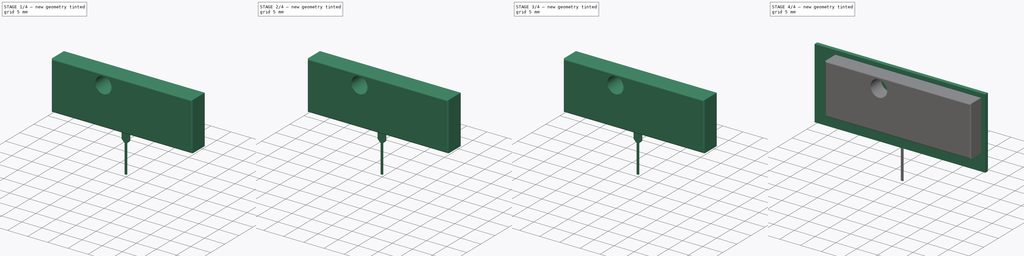
[diagram: build sequence overview — one tinted view per stage of 4, left to right]
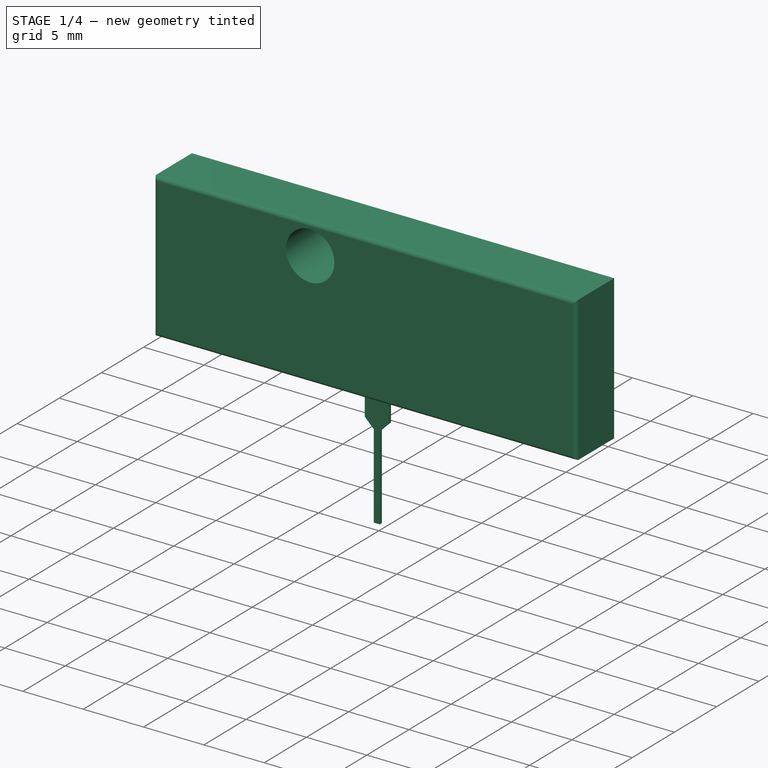
[diagram: stage 1 of 4 — iso view after this stage's code; geometry added in this stage tinted green]
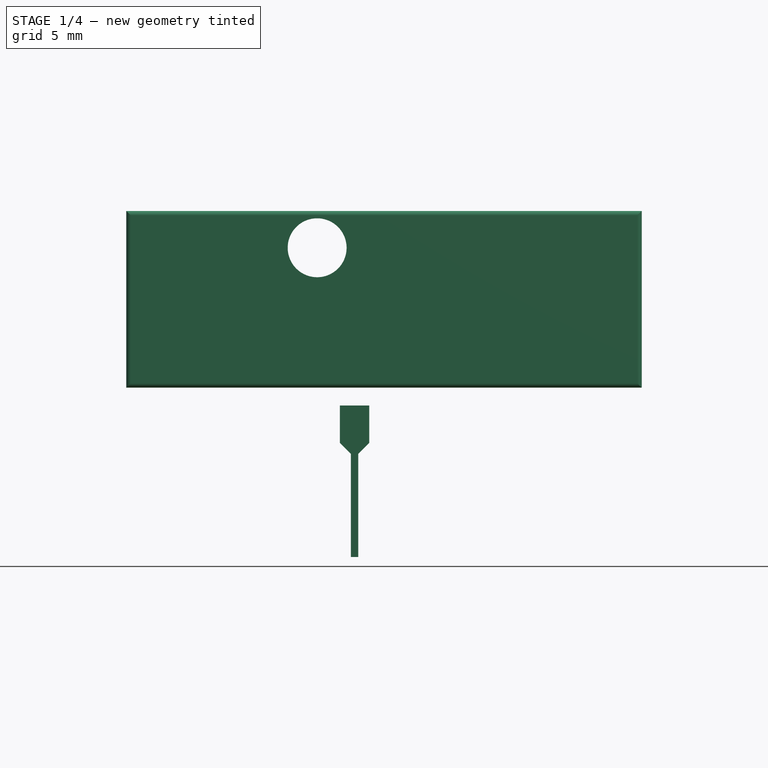
[diagram: stage 1 of 4 — front view after this stage's code; geometry added in this stage tinted green]
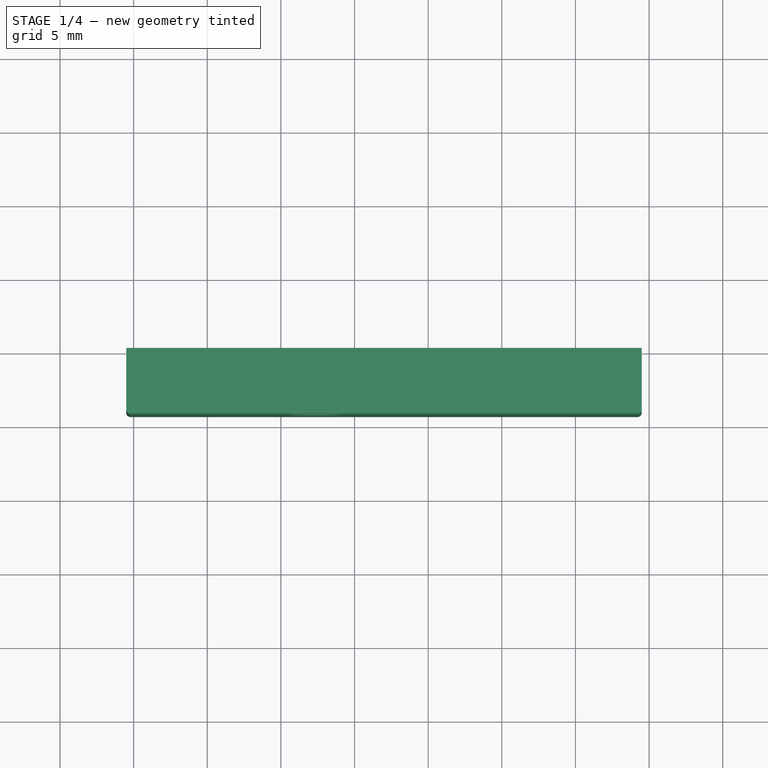
[diagram: stage 1 of 4 — top view after this stage's code; geometry added in this stage tinted green]
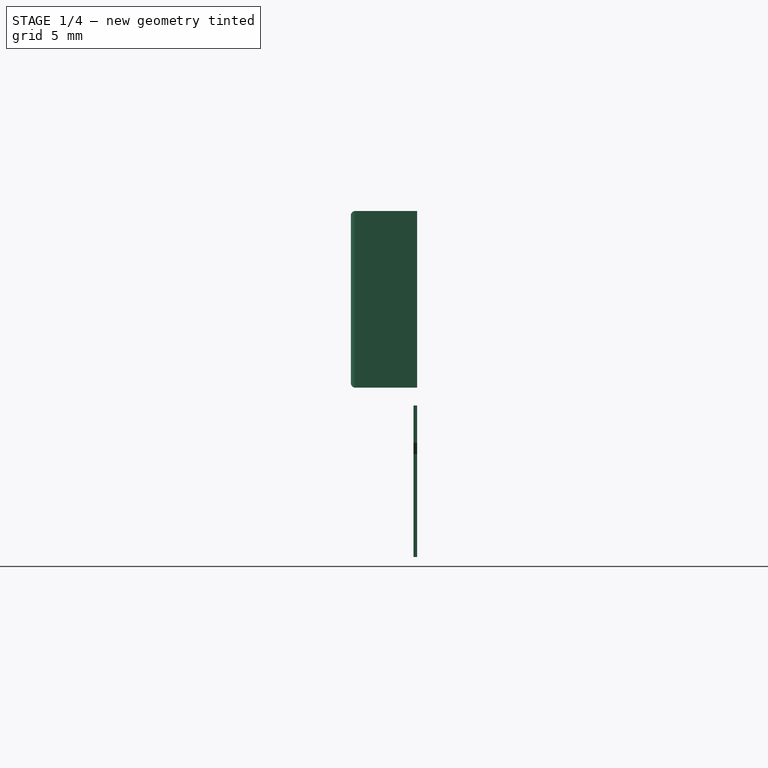
[diagram: stage 1 of 4 — right view after this stage's code; geometry added in this stage tinted green]
FCSTD DOCUMENT  (FreeCAD 0.21R33771 (Git))
Label: AUREL_RX-4MHCS-4B
License: All rights reserved
LicenseURL: http://en.wikipedia.org/wiki/All_rights_reserved
objects: Sketcher::SketchObject×13, PartDesign::Pad×13, PartDesign::Body×13, PartDesign::Fillet×1
note: 54 computed .brp shape members not serialized (recipe doc carries the construction recipe); baked Part::Feature solids carry a one-line shape summary decoded from their .brp

FEATURE [PartDesign::Body] Body009  label="Pin13"
  Group = -> [Sketch009,Pad009]
  Origin = -> Origin009
  Placement = pos=(12.7,0.3,0) rot=(0,0,1;0rad)
  Tip = -> Pad009
FEATURE [Sketcher::SketchObject] Sketch010
  FullyConstrained = true
  MapMode = 5
  Placement = pos=(0,0,0) rot=(1,0,0;1.5708rad)
  Support = -> [XZ_Plane010]
  sketch-geometry (8):
    g0: LineSegment StartX=-1 StartY=3.29 StartZ=0 EndX=1 EndY=3.29 EndZ=0
    g1: LineSegment StartX=1 StartY=3.29 StartZ=0 EndX=1 EndY=0.75 EndZ=0
    g2: LineSegment StartX=1 StartY=0.75 StartZ=0 EndX=0.25 EndY=0 EndZ=0
    g3: LineSegment StartX=-1 StartY=3.29 StartZ=0 EndX=-1 EndY=0.75 EndZ=0
    g4: LineSegment StartX=-1 StartY=0.75 StartZ=0 EndX=-0.25 EndY=0 EndZ=0
    g5: LineSegment StartX=-0.25 StartY=0 StartZ=0 EndX=-0.25 EndY=-7 EndZ=0
    g6: LineSegment StartX=-0.25 StartY=-7 StartZ=0 EndX=0.25 EndY=-7 EndZ=0
    g7: LineSegment StartX=0.25 StartY=0 StartZ=0 EndX=0.25 EndY=-7 EndZ=0
  constraints (23):
    c: Coincident(g1,g0)
    c: Vertical(g1)
    c: Coincident(g2,g1)
    c: PointOnObject(g2,g-1)
    c: Coincident(g3,g0)
    c: Vertical(g3)
    c: Coincident(g4,g3)
    c: PointOnObject(g4,g-1)
    c: Equal(g3,g1)
    c: DistanceX(g0,g0) = 2
    c: Symmetric(g0,g0,g-2)
    c: Equal(g2,g4)
    c: Coincident(g5,g4)
    c: Vertical(g5)
    c: Coincident(g6,g5)
    c: Horizontal(g6)
    c: Coincident(g7,g2)
    c: Coincident(g7,g6)
    c: Vertical(g7)
    c: Angle(g4) = -0.785398
    c: DistanceX(g6,g6) = 0.5
    c: DistanceY(g7,g7) = 7
    c: DistanceY(g1,g1) = 2.54
FEATURE [PartDesign::Pad] Pad010
  Direction = (0,-1,2e-16)
  Length = 0.25
  Length2 = 10
  Placement = pos=(0,0,0) rot=(1,0,0;1.5708rad)
  Profile = -> Sketch010
  ReferenceAxis = -> Sketch010 [N_Axis]
  Type = 0
FEATURE [PartDesign::Body] Body010  label="Pin14"
  Group = -> [Sketch010,Pad010]
  Origin = -> Origin010
  Placement = pos=(15.24,0.3,0) rot=(0,0,1;0rad)
  Tip = -> Pad010
FEATURE [Sketcher::SketchObject] Sketch011
  FullyConstrained = true
  MapMode = 5
  Placement = pos=(0,0,0) rot=(1,0,0;1.5708rad)
  Support = -> [XZ_Plane011]
  sketch-geometry (8):
    g0: LineSegment StartX=-1 StartY=3.29 StartZ=0 EndX=1 EndY=3.29 EndZ=0
    g1: LineSegment StartX=1 StartY=3.29 StartZ=0 EndX=1 EndY=0.75 EndZ=0
    g2: LineSegment StartX=1 StartY=0.75 StartZ=0 EndX=0.25 EndY=0 EndZ=0
    g3: LineSegment StartX=-1 StartY=3.29 StartZ=0 EndX=-1 EndY=0.75 EndZ=0
    g4: LineSegment StartX=-1 StartY=0.75 StartZ=0 EndX=-0.25 EndY=0 EndZ=0
    g5: LineSegment StartX=-0.25 StartY=0 StartZ=0 EndX=-0.25 EndY=-7 EndZ=0
    g6: LineSegment StartX=-0.25 StartY=-7 StartZ=0 EndX=0.25 EndY=-7 EndZ=0
    g7: LineSegment StartX=0.25 StartY=0 StartZ=0 EndX=0.25 EndY=-7 EndZ=0
  constraints (23):
    c: Coincident(g1,g0)
    c: Vertical(g1)
    c: Coincident(g2,g1)
    c: PointOnObject(g2,g-1)
    c: Coincident(g3,g0)
    c: Vertical(g3)
    c: Coincident(g4,g3)
    c: PointOnObject(g4,g-1)
    c: Equal(g3,g1)
    c: DistanceX(g0,g0) = 2
    c: Symmetric(g0,g0,g-2)
    c: Equal(g2,g4)
    c: Coincident(g5,g4)
    c: Vertical(g5)
    c: Coincident(g6,g5)
    c: Horizontal(g6)
    c: Coincident(g7,g2)
    c: Coincident(g7,g6)
    c: Vertical(g7)
    c: Angle(g4) = -0.785398
    c: DistanceX(g6,g6) = 0.5
    c: DistanceY(g7,g7) = 7
    c: DistanceY(g1,g1) = 2.54
FEATURE [PartDesign::Pad] Pad011
  Direction = (0,-1,2e-16)
  Length = 0.25
  Length2 = 10
  Placement = pos=(0,0,0) rot=(1,0,0;1.5708rad)
  Profile = -> Sketch011
  ReferenceAxis = -> Sketch011 [N_Axis]
  Type = 0
FEATURE [PartDesign::Body] Body011  label="Pin15"
  Group = -> [Sketch011,Pad011]
  Origin = -> Origin011
  Placement = pos=(17.76,0.3,0) rot=(0,0,1;0rad)
  Tip = -> Pad011
FEATURE [Sketcher::SketchObject] Sketch012
  FullyConstrained = true
  MapMode = 5
  Placement = pos=(0,0,0) rot=(1,0,0;1.5708rad)
  Support = -> [XZ_Plane012]
  sketch-geometry (5):
    g0: LineSegment StartX=-15.5 StartY=16.5 StartZ=0 EndX=19.5 EndY=16.5 EndZ=0
    g1: LineSegment StartX=19.5 StartY=16.5 StartZ=0 EndX=19.5 EndY=4.5 EndZ=0
    g2: LineSegment StartX=19.5 StartY=4.5 StartZ=0 EndX=-15.5 EndY=4.5 EndZ=0
    g3: LineSegment StartX=-15.5 StartY=4.5 StartZ=0 EndX=-15.5 EndY=16.5 EndZ=0
    g4: Circle CenterX=-2.54 CenterY=14 CenterZ=0 NormalX=0 NormalY=0 NormalZ=1 AngleXU=0 Radius=2
  constraints (15):
    c: Coincident(g0,g1)
    c: Coincident(g1,g2)
    c: Coincident(g2,g3)
    c: Coincident(g3,g0)
    c: Horizontal(g0)
    c: Horizontal(g2)
    c: Vertical(g1)
    c: Vertical(g3)
    c: DistanceY(g1,g1) = 12
    c: DistanceX(g0,g0) = 35
    c: DistanceY(g1) = 4.5
    c: DistanceX(g1) = 19.5
    c: Radius(g4) = 2
    c: DistanceY(g4) = 14
    c: DistanceX(g4) = -2.54
FEATURE [PartDesign::Pad] Pad012
  Direction = (0,-1,2e-16)
  Length = 4.5
  Length2 = 10
  Placement = pos=(0,0,0) rot=(1,0,0;1.5708rad)
  Profile = -> Sketch012
  ReferenceAxis = -> Sketch012 [N_Axis]
  Type = 0
FEATURE [PartDesign::Fillet] Fillet
  Base = -> Pad012 [Edge4,Edge12,Edge10,Edge7]
  BaseFeature = -> Pad012
  Placement = pos=(0,0,0) rot=(1,0,0;1.5708rad)
  Radius = 0.3
  SupportTransform = false
  UseAllEdges = false
FEATURE [PartDesign::Body] Body012  label="Shield"
  Group = -> [Sketch012,Pad012,Fillet]
  Origin = -> Origin012
  Placement = pos=(0,-1,0) rot=(0,0,1;0rad)
  Tip = -> Fillet
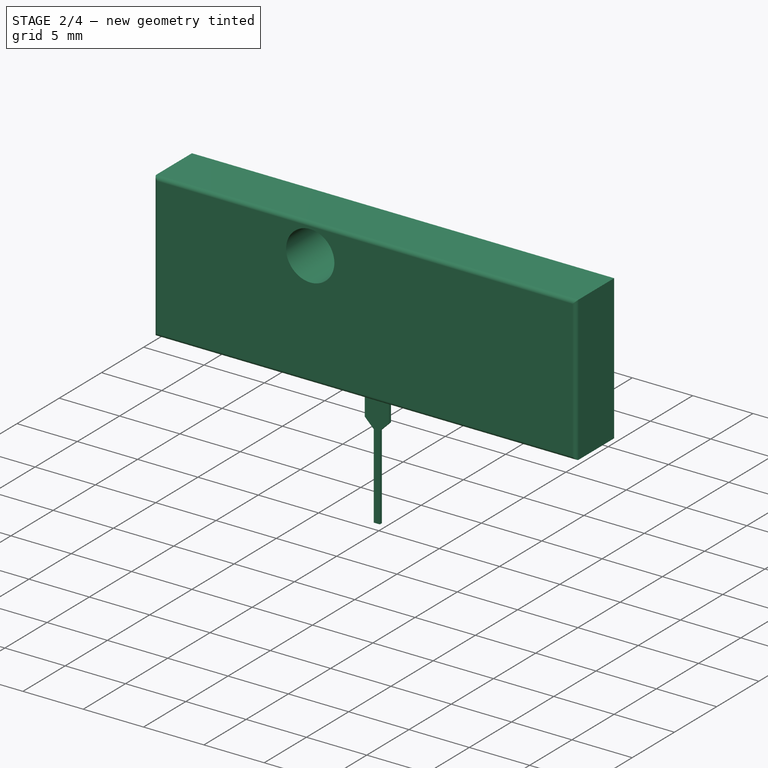
[diagram: stage 2 of 4 — iso view after this stage's code; geometry added in this stage tinted green]
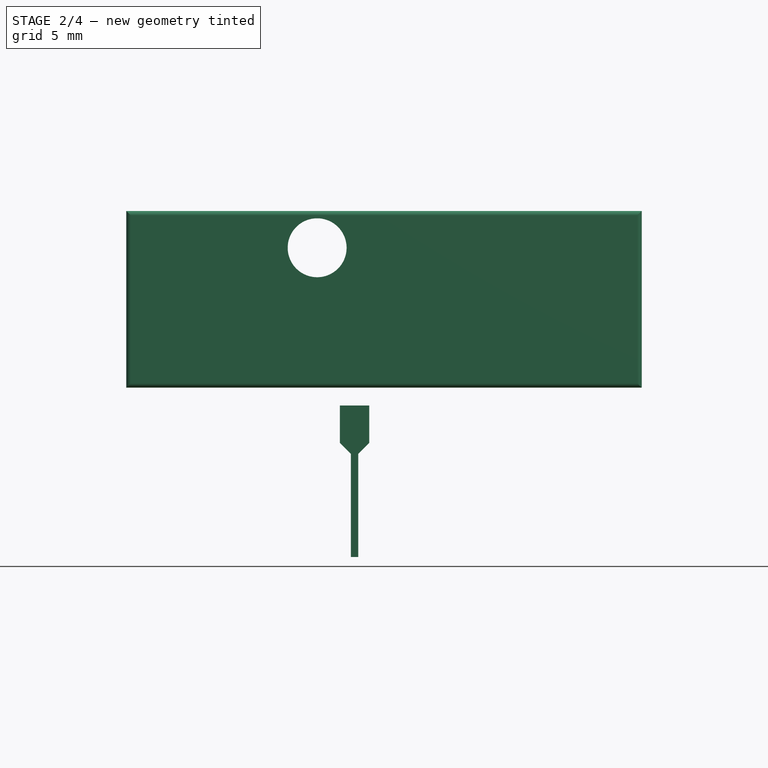
[diagram: stage 2 of 4 — front view after this stage's code; geometry added in this stage tinted green]
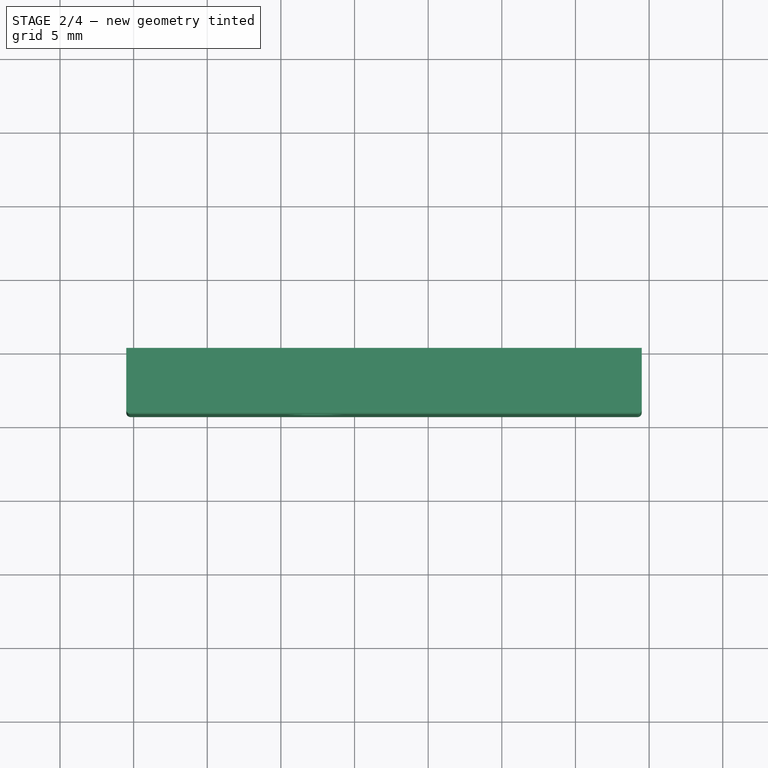
[diagram: stage 2 of 4 — top view after this stage's code; geometry added in this stage tinted green]
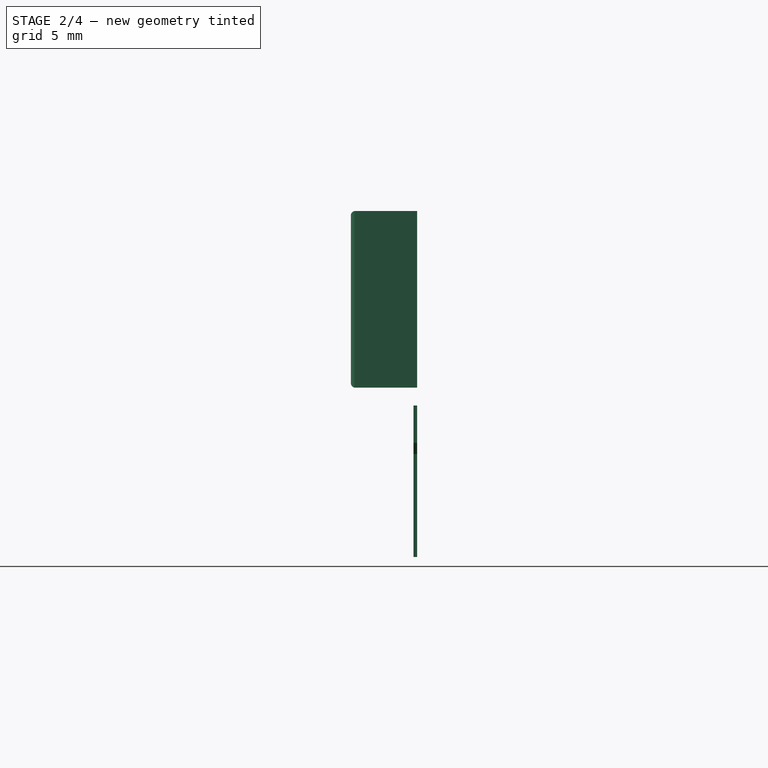
[diagram: stage 2 of 4 — right view after this stage's code; geometry added in this stage tinted green]
FEATURE [PartDesign::Body] Body006  label="Pin10"
  Group = -> [Sketch006,Pad006]
  Origin = -> Origin006
  Placement = pos=(5.08,0.3,0) rot=(0,0,1;0rad)
  Tip = -> Pad006
FEATURE [Sketcher::SketchObject] Sketch007
  FullyConstrained = true
  MapMode = 5
  Placement = pos=(0,0,0) rot=(1,0,0;1.5708rad)
  Support = -> [XZ_Plane007]
  sketch-geometry (8):
    g0: LineSegment StartX=-1 StartY=3.29 StartZ=0 EndX=1 EndY=3.29 EndZ=0
    g1: LineSegment StartX=1 StartY=3.29 StartZ=0 EndX=1 EndY=0.75 EndZ=0
    g2: LineSegment StartX=1 StartY=0.75 StartZ=0 EndX=0.25 EndY=0 EndZ=0
    g3: LineSegment StartX=-1 StartY=3.29 StartZ=0 EndX=-1 EndY=0.75 EndZ=0
    g4: LineSegment StartX=-1 StartY=0.75 StartZ=0 EndX=-0.25 EndY=0 EndZ=0
    g5: LineSegment StartX=-0.25 StartY=0 StartZ=0 EndX=-0.25 EndY=-7 EndZ=0
    g6: LineSegment StartX=-0.25 StartY=-7 StartZ=0 EndX=0.25 EndY=-7 EndZ=0
    g7: LineSegment StartX=0.25 StartY=0 StartZ=0 EndX=0.25 EndY=-7 EndZ=0
  constraints (23):
    c: Coincident(g1,g0)
    c: Vertical(g1)
    c: Coincident(g2,g1)
    c: PointOnObject(g2,g-1)
    c: Coincident(g3,g0)
    c: Vertical(g3)
    c: Coincident(g4,g3)
    c: PointOnObject(g4,g-1)
    c: Equal(g3,g1)
    c: DistanceX(g0,g0) = 2
    c: Symmetric(g0,g0,g-2)
    c: Equal(g2,g4)
    c: Coincident(g5,g4)
    c: Vertical(g5)
    c: Coincident(g6,g5)
    c: Horizontal(g6)
    c: Coincident(g7,g2)
    c: Coincident(g7,g6)
    c: Vertical(g7)
    c: Angle(g4) = -0.785398
    c: DistanceX(g6,g6) = 0.5
    c: DistanceY(g7,g7) = 7
    c: DistanceY(g1,g1) = 2.54
FEATURE [PartDesign::Pad] Pad007
  Direction = (0,-1,2e-16)
  Length = 0.25
  Length2 = 10
  Placement = pos=(0,0,0) rot=(1,0,0;1.5708rad)
  Profile = -> Sketch007
  ReferenceAxis = -> Sketch007 [N_Axis]
  Type = 0
FEATURE [PartDesign::Body] Body007  label="Pin11"
  Group = -> [Sketch007,Pad007]
  Origin = -> Origin007
  Placement = pos=(7.62,0.3,0) rot=(0,0,1;0rad)
  Tip = -> Pad007
FEATURE [Sketcher::SketchObject] Sketch008
  FullyConstrained = true
  MapMode = 5
  Placement = pos=(0,0,0) rot=(1,0,0;1.5708rad)
  Support = -> [XZ_Plane008]
  sketch-geometry (8):
    g0: LineSegment StartX=-1 StartY=3.29 StartZ=0 EndX=1 EndY=3.29 EndZ=0
    g1: LineSegment StartX=1 StartY=3.29 StartZ=0 EndX=1 EndY=0.75 EndZ=0
    g2: LineSegment StartX=1 StartY=0.75 StartZ=0 EndX=0.25 EndY=0 EndZ=0
    g3: LineSegment StartX=-1 StartY=3.29 StartZ=0 EndX=-1 EndY=0.75 EndZ=0
    g4: LineSegment StartX=-1 StartY=0.75 StartZ=0 EndX=-0.25 EndY=0 EndZ=0
    g5: LineSegment StartX=-0.25 StartY=0 StartZ=0 EndX=-0.25 EndY=-7 EndZ=0
    g6: LineSegment StartX=-0.25 StartY=-7 StartZ=0 EndX=0.25 EndY=-7 EndZ=0
    g7: LineSegment StartX=0.25 StartY=0 StartZ=0 EndX=0.25 EndY=-7 EndZ=0
  constraints (23):
    c: Coincident(g1,g0)
    c: Vertical(g1)
    c: Coincident(g2,g1)
    c: PointOnObject(g2,g-1)
    c: Coincident(g3,g0)
    c: Vertical(g3)
    c: Coincident(g4,g3)
    c: PointOnObject(g4,g-1)
    c: Equal(g3,g1)
    c: DistanceX(g0,g0) = 2
    c: Symmetric(g0,g0,g-2)
    c: Equal(g2,g4)
    c: Coincident(g5,g4)
    c: Vertical(g5)
    c: Coincident(g6,g5)
    c: Horizontal(g6)
    c: Coincident(g7,g2)
    c: Coincident(g7,g6)
    c: Vertical(g7)
    c: Angle(g4) = -0.785398
    c: DistanceX(g6,g6) = 0.5
    c: DistanceY(g7,g7) = 7
    c: DistanceY(g1,g1) = 2.54
FEATURE [PartDesign::Pad] Pad008
  Direction = (0,-1,2e-16)
  Length = 0.25
  Length2 = 10
  Placement = pos=(0,0,0) rot=(1,0,0;1.5708rad)
  Profile = -> Sketch008
  ReferenceAxis = -> Sketch008 [N_Axis]
  Type = 0
FEATURE [PartDesign::Body] Body008  label="Pin12"
  Group = -> [Sketch008,Pad008]
  Origin = -> Origin008
  Placement = pos=(10.16,0.3,0) rot=(0,0,1;0rad)
  Tip = -> Pad008
FEATURE [Sketcher::SketchObject] Sketch009
  FullyConstrained = true
  MapMode = 5
  Placement = pos=(0,0,0) rot=(1,0,0;1.5708rad)
  Support = -> [XZ_Plane009]
  sketch-geometry (8):
    g0: LineSegment StartX=-1 StartY=3.29 StartZ=0 EndX=1 EndY=3.29 EndZ=0
    g1: LineSegment StartX=1 StartY=3.29 StartZ=0 EndX=1 EndY=0.75 EndZ=0
    g2: LineSegment StartX=1 StartY=0.75 StartZ=0 EndX=0.25 EndY=0 EndZ=0
    g3: LineSegment StartX=-1 StartY=3.29 StartZ=0 EndX=-1 EndY=0.75 EndZ=0
    g4: LineSegment StartX=-1 StartY=0.75 StartZ=0 EndX=-0.25 EndY=0 EndZ=0
    g5: LineSegment StartX=-0.25 StartY=0 StartZ=0 EndX=-0.25 EndY=-7 EndZ=0
    g6: LineSegment StartX=-0.25 StartY=-7 StartZ=0 EndX=0.25 EndY=-7 EndZ=0
    g7: LineSegment StartX=0.25 StartY=0 StartZ=0 EndX=0.25 EndY=-7 EndZ=0
  constraints (23):
    c: Coincident(g1,g0)
    c: Vertical(g1)
    c: Coincident(g2,g1)
    c: PointOnObject(g2,g-1)
    c: Coincident(g3,g0)
    c: Vertical(g3)
    c: Coincident(g4,g3)
    c: PointOnObject(g4,g-1)
    c: Equal(g3,g1)
    c: DistanceX(g0,g0) = 2
    c: Symmetric(g0,g0,g-2)
    c: Equal(g2,g4)
    c: Coincident(g5,g4)
    c: Vertical(g5)
    c: Coincident(g6,g5)
    c: Horizontal(g6)
    c: Coincident(g7,g2)
    c: Coincident(g7,g6)
    c: Vertical(g7)
    c: Angle(g4) = -0.785398
    c: DistanceX(g6,g6) = 0.5
    c: DistanceY(g7,g7) = 7
    c: DistanceY(g1,g1) = 2.54
FEATURE [PartDesign::Pad] Pad009
  Direction = (0,-1,2e-16)
  Length = 0.25
  Length2 = 10
  Placement = pos=(0,0,0) rot=(1,0,0;1.5708rad)
  Profile = -> Sketch009
  ReferenceAxis = -> Sketch009 [N_Axis]
  Type = 0
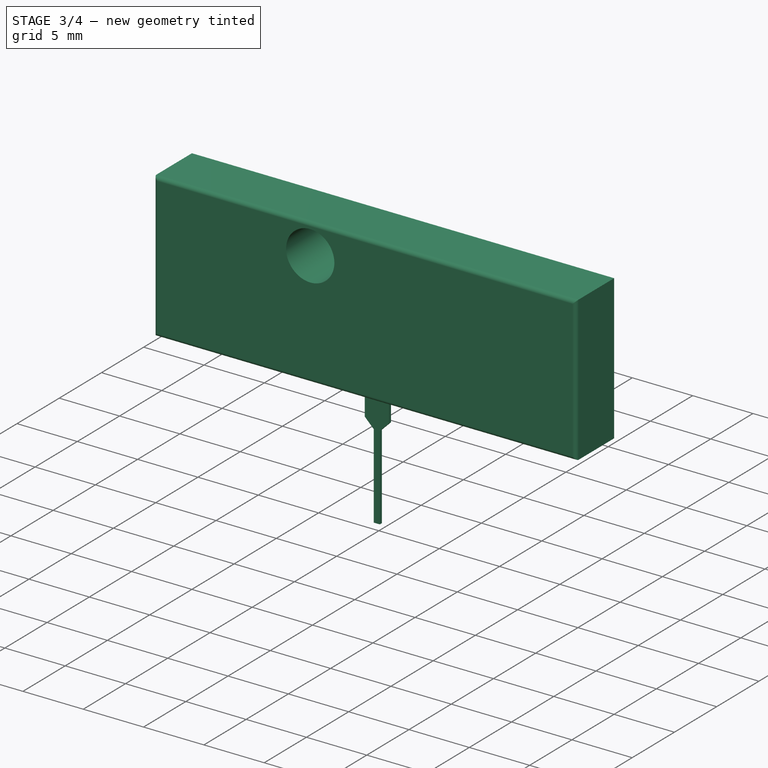
[diagram: stage 3 of 4 — iso view after this stage's code; geometry added in this stage tinted green]
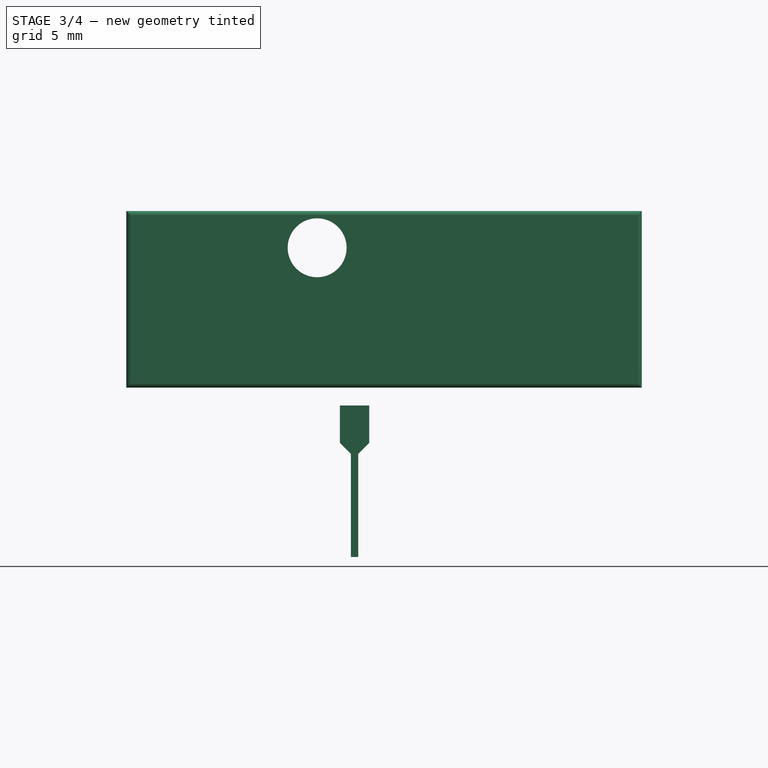
[diagram: stage 3 of 4 — front view after this stage's code; geometry added in this stage tinted green]
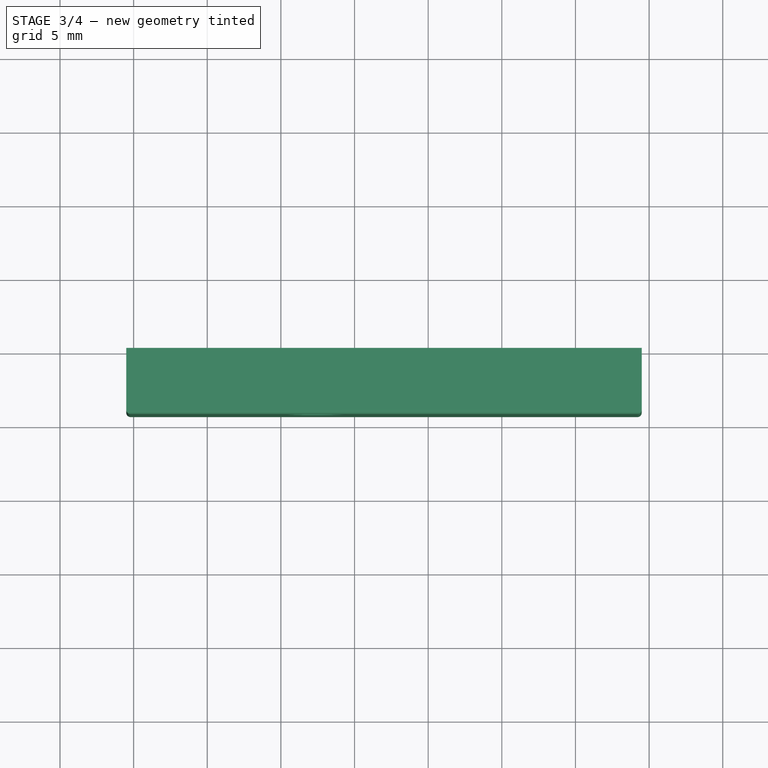
[diagram: stage 3 of 4 — top view after this stage's code; geometry added in this stage tinted green]
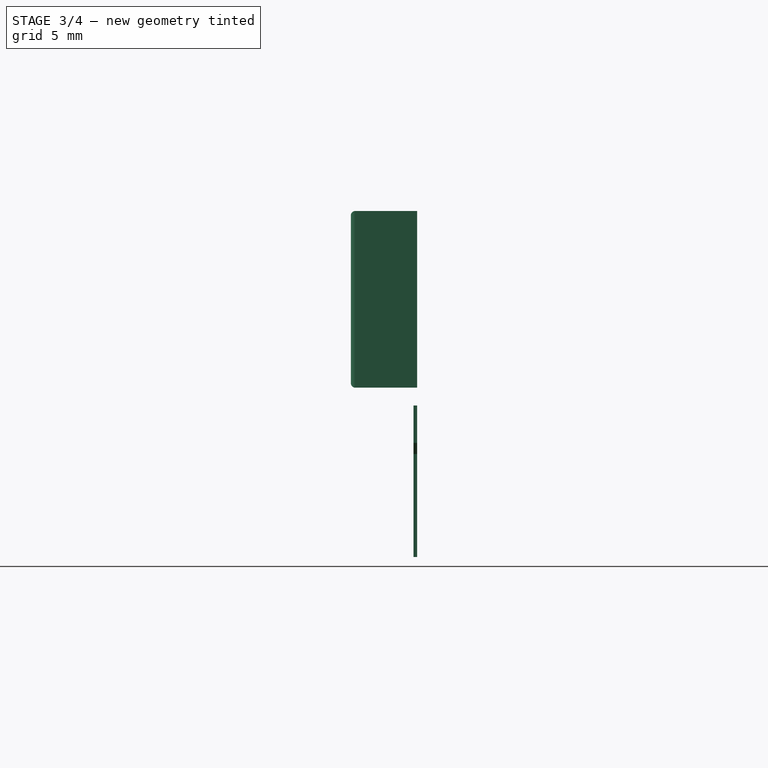
[diagram: stage 3 of 4 — right view after this stage's code; geometry added in this stage tinted green]
FEATURE [PartDesign::Body] Body003  label="Pin7"
  Group = -> [Sketch003,Pad003]
  Origin = -> Origin003
  Placement = pos=(-2.54,0.3,0) rot=(0,0,1;0rad)
  Tip = -> Pad003
FEATURE [Sketcher::SketchObject] Sketch004
  FullyConstrained = true
  MapMode = 5
  Placement = pos=(0,0,0) rot=(1,0,0;1.5708rad)
  Support = -> [XZ_Plane004]
  sketch-geometry (8):
    g0: LineSegment StartX=-1 StartY=3.29 StartZ=0 EndX=1 EndY=3.29 EndZ=0
    g1: LineSegment StartX=1 StartY=3.29 StartZ=0 EndX=1 EndY=0.75 EndZ=0
    g2: LineSegment StartX=1 StartY=0.75 StartZ=0 EndX=0.25 EndY=0 EndZ=0
    g3: LineSegment StartX=-1 StartY=3.29 StartZ=0 EndX=-1 EndY=0.75 EndZ=0
    g4: LineSegment StartX=-1 StartY=0.75 StartZ=0 EndX=-0.25 EndY=0 EndZ=0
    g5: LineSegment StartX=-0.25 StartY=0 StartZ=0 EndX=-0.25 EndY=-7 EndZ=0
    g6: LineSegment StartX=-0.25 StartY=-7 StartZ=0 EndX=0.25 EndY=-7 EndZ=0
    g7: LineSegment StartX=0.25 StartY=0 StartZ=0 EndX=0.25 EndY=-7 EndZ=0
  constraints (23):
    c: Coincident(g1,g0)
    c: Vertical(g1)
    c: Coincident(g2,g1)
    c: PointOnObject(g2,g-1)
    c: Coincident(g3,g0)
    c: Vertical(g3)
    c: Coincident(g4,g3)
    c: PointOnObject(g4,g-1)
    c: Equal(g3,g1)
    c: DistanceX(g0,g0) = 2
    c: Symmetric(g0,g0,g-2)
    c: Equal(g2,g4)
    c: Coincident(g5,g4)
    c: Vertical(g5)
    c: Coincident(g6,g5)
    c: Horizontal(g6)
    c: Coincident(g7,g2)
    c: Coincident(g7,g6)
    c: Vertical(g7)
    c: Angle(g4) = -0.785398
    c: DistanceX(g6,g6) = 0.5
    c: DistanceY(g7,g7) = 7
    c: DistanceY(g1,g1) = 2.54
FEATURE [PartDesign::Pad] Pad004
  Direction = (0,-1,2e-16)
  Length = 0.25
  Length2 = 10
  Placement = pos=(0,0,0) rot=(1,0,0;1.5708rad)
  Profile = -> Sketch004
  ReferenceAxis = -> Sketch004 [N_Axis]
  Type = 0
FEATURE [PartDesign::Body] Body004  label="Pin8"
  Group = -> [Sketch004,Pad004]
  Origin = -> Origin004
  Placement = pos=(0,0.3,0) rot=(0,0,1;0rad)
  Tip = -> Pad004
FEATURE [Sketcher::SketchObject] Sketch005
  FullyConstrained = true
  MapMode = 5
  Placement = pos=(0,0,0) rot=(1,0,0;1.5708rad)
  Support = -> [XZ_Plane005]
  sketch-geometry (8):
    g0: LineSegment StartX=-1 StartY=3.29 StartZ=0 EndX=1 EndY=3.29 EndZ=0
    g1: LineSegment StartX=1 StartY=3.29 StartZ=0 EndX=1 EndY=0.75 EndZ=0
    g2: LineSegment StartX=1 StartY=0.75 StartZ=0 EndX=0.25 EndY=0 EndZ=0
    g3: LineSegment StartX=-1 StartY=3.29 StartZ=0 EndX=-1 EndY=0.75 EndZ=0
    g4: LineSegment StartX=-1 StartY=0.75 StartZ=0 EndX=-0.25 EndY=0 EndZ=0
    g5: LineSegment StartX=-0.25 StartY=0 StartZ=0 EndX=-0.25 EndY=-7 EndZ=0
    g6: LineSegment StartX=-0.25 StartY=-7 StartZ=0 EndX=0.25 EndY=-7 EndZ=0
    g7: LineSegment StartX=0.25 StartY=0 StartZ=0 EndX=0.25 EndY=-7 EndZ=0
  constraints (23):
    c: Coincident(g1,g0)
    c: Vertical(g1)
    c: Coincident(g2,g1)
    c: PointOnObject(g2,g-1)
    c: Coincident(g3,g0)
    c: Vertical(g3)
    c: Coincident(g4,g3)
    c: PointOnObject(g4,g-1)
    c: Equal(g3,g1)
    c: DistanceX(g0,g0) = 2
    c: Symmetric(g0,g0,g-2)
    c: Equal(g2,g4)
    c: Coincident(g5,g4)
    c: Vertical(g5)
    c: Coincident(g6,g5)
    c: Horizontal(g6)
    c: Coincident(g7,g2)
    c: Coincident(g7,g6)
    c: Vertical(g7)
    c: Angle(g4) = -0.785398
    c: DistanceX(g6,g6) = 0.5
    c: DistanceY(g7,g7) = 7
    c: DistanceY(g1,g1) = 2.54
FEATURE [PartDesign::Pad] Pad005
  Direction = (0,-1,2e-16)
  Length = 0.25
  Length2 = 10
  Placement = pos=(0,0,0) rot=(1,0,0;1.5708rad)
  Profile = -> Sketch005
  ReferenceAxis = -> Sketch005 [N_Axis]
  Type = 0
FEATURE [PartDesign::Body] Body005  label="Pin9"
  Group = -> [Sketch005,Pad005]
  Origin = -> Origin005
  Placement = pos=(2.54,0.3,0) rot=(0,0,1;0rad)
  Tip = -> Pad005
FEATURE [Sketcher::SketchObject] Sketch006
  FullyConstrained = true
  MapMode = 5
  Placement = pos=(0,0,0) rot=(1,0,0;1.5708rad)
  Support = -> [XZ_Plane006]
  sketch-geometry (8):
    g0: LineSegment StartX=-1 StartY=3.29 StartZ=0 EndX=1 EndY=3.29 EndZ=0
    g1: LineSegment StartX=1 StartY=3.29 StartZ=0 EndX=1 EndY=0.75 EndZ=0
    g2: LineSegment StartX=1 StartY=0.75 StartZ=0 EndX=0.25 EndY=0 EndZ=0
    g3: LineSegment StartX=-1 StartY=3.29 StartZ=0 EndX=-1 EndY=0.75 EndZ=0
    g4: LineSegment StartX=-1 StartY=0.75 StartZ=0 EndX=-0.25 EndY=0 EndZ=0
    g5: LineSegment StartX=-0.25 StartY=0 StartZ=0 EndX=-0.25 EndY=-7 EndZ=0
    g6: LineSegment StartX=-0.25 StartY=-7 StartZ=0 EndX=0.25 EndY=-7 EndZ=0
    g7: LineSegment StartX=0.25 StartY=0 StartZ=0 EndX=0.25 EndY=-7 EndZ=0
  constraints (23):
    c: Coincident(g1,g0)
    c: Vertical(g1)
    c: Coincident(g2,g1)
    c: PointOnObject(g2,g-1)
    c: Coincident(g3,g0)
    c: Vertical(g3)
    c: Coincident(g4,g3)
    c: PointOnObject(g4,g-1)
    c: Equal(g3,g1)
    c: DistanceX(g0,g0) = 2
    c: Symmetric(g0,g0,g-2)
    c: Equal(g2,g4)
    c: Coincident(g5,g4)
    c: Vertical(g5)
    c: Coincident(g6,g5)
    c: Horizontal(g6)
    c: Coincident(g7,g2)
    c: Coincident(g7,g6)
    c: Vertical(g7)
    c: Angle(g4) = -0.785398
    c: DistanceX(g6,g6) = 0.5
    c: DistanceY(g7,g7) = 7
    c: DistanceY(g1,g1) = 2.54
FEATURE [PartDesign::Pad] Pad006
  Direction = (0,-1,2e-16)
  Length = 0.25
  Length2 = 10
  Placement = pos=(0,0,0) rot=(1,0,0;1.5708rad)
  Profile = -> Sketch006
  ReferenceAxis = -> Sketch006 [N_Axis]
  Type = 0
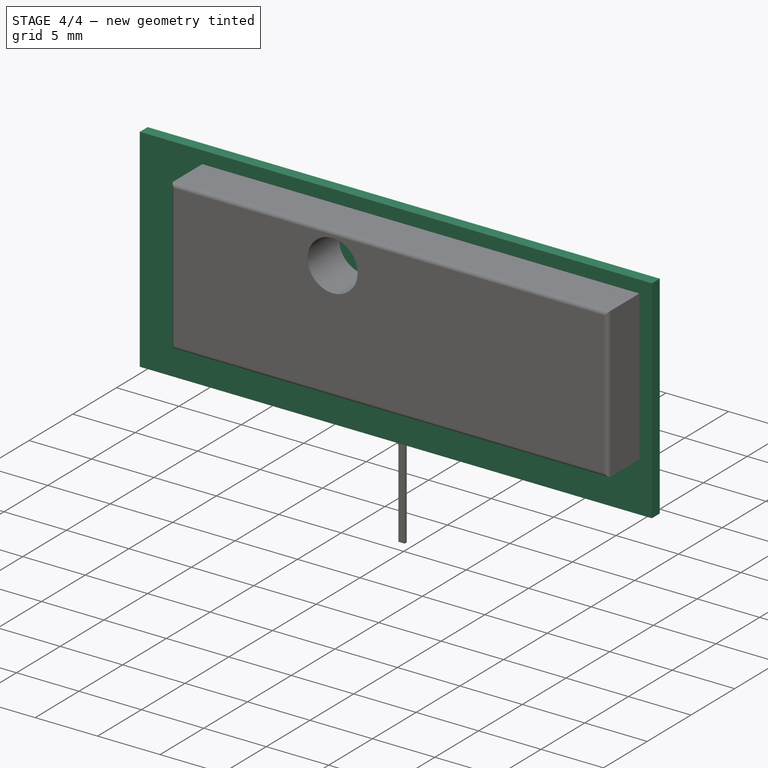
[diagram: stage 4 of 4 — iso view after this stage's code; geometry added in this stage tinted green]
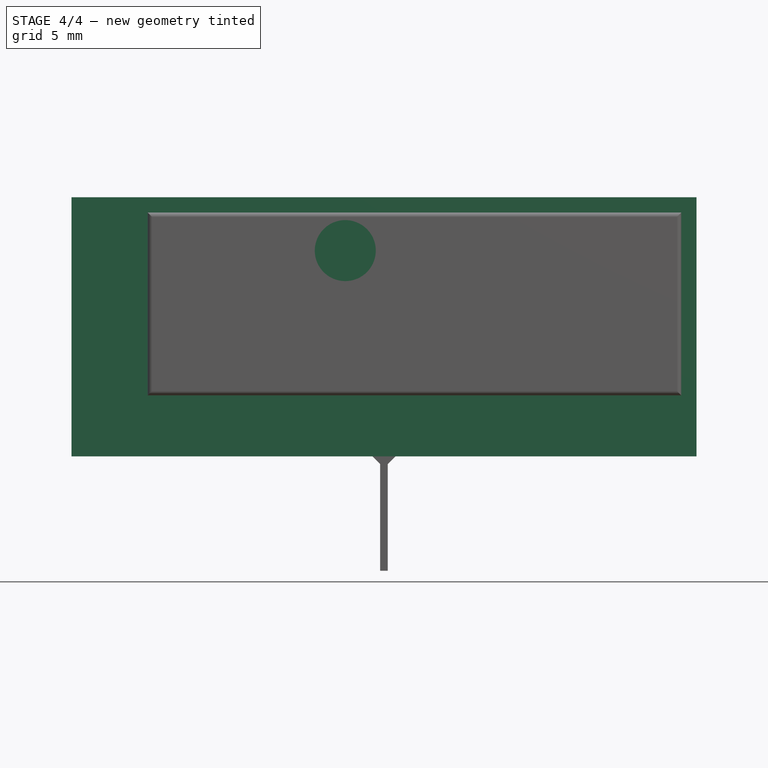
[diagram: stage 4 of 4 — front view after this stage's code; geometry added in this stage tinted green]
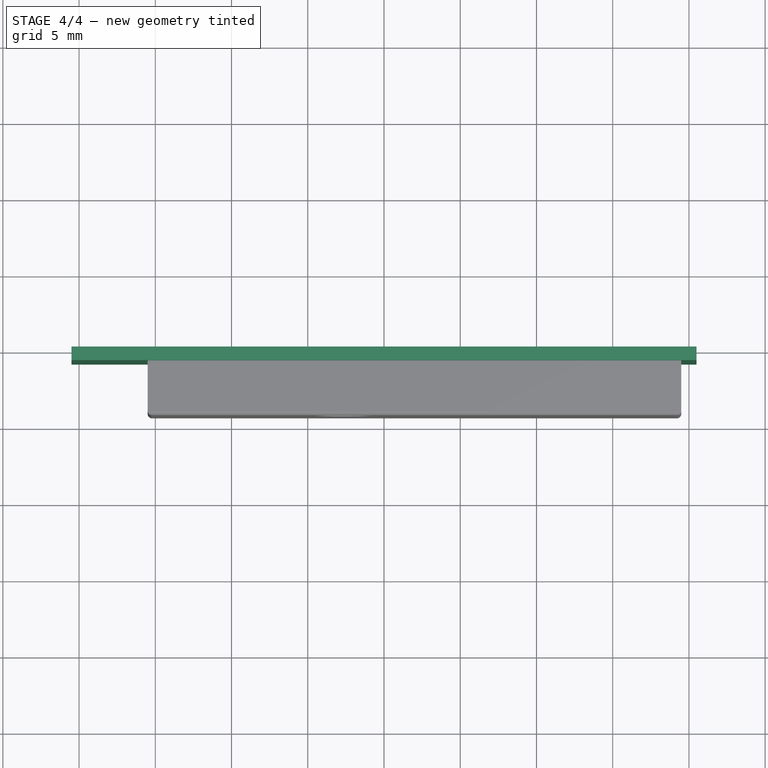
[diagram: stage 4 of 4 — top view after this stage's code; geometry added in this stage tinted green]
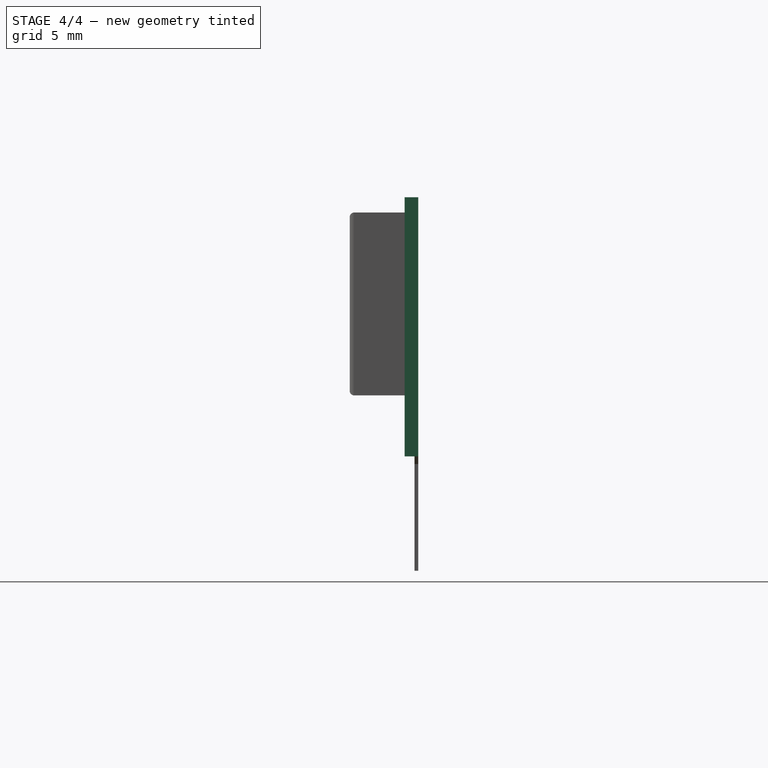
[diagram: stage 4 of 4 — right view after this stage's code; geometry added in this stage tinted green]
FEATURE [Sketcher::SketchObject] Sketch
  FullyConstrained = true
  MapMode = 5
  Placement = pos=(0,0,0) rot=(1,0,0;1.5708rad)
  Support = -> [XZ_Plane]
  sketch-geometry (4):
    g0: LineSegment StartX=-20.5 StartY=17.5 StartZ=0 EndX=20.5 EndY=17.5 EndZ=0
    g1: LineSegment StartX=20.5 StartY=17.5 StartZ=0 EndX=20.5 EndY=0.5 EndZ=0
    g2: LineSegment StartX=20.5 StartY=0.5 StartZ=0 EndX=-20.5 EndY=0.5 EndZ=0
    g3: LineSegment StartX=-20.5 StartY=0.5 StartZ=0 EndX=-20.5 EndY=17.5 EndZ=0
  constraints (11):
    c: Coincident(g0,g1)
    c: Coincident(g1,g2)
    c: Coincident(g2,g3)
    c: Coincident(g3,g0)
    c: Horizontal(g2)
    c: Vertical(g1)
    c: Vertical(g3)
    c: DistanceX(g0,g0) = 41
    c: Symmetric(g0,g0,g-2)
    c: DistanceY(g1,g1) = 17
    c: DistanceY(g1) = 0.5
FEATURE [PartDesign::Pad] Pad
  Direction = (0,-1,2e-16)
  Length = 0.9
  Length2 = 10
  Placement = pos=(0,0,0) rot=(1,0,0;1.5708rad)
  Profile = -> Sketch
  ReferenceAxis = -> Sketch [N_Axis]
  Type = 0
FEATURE [PartDesign::Body] Body  label="Pcb"
  Group = -> [Sketch,Pad]
  Origin = -> Origin
  Tip = -> Pad
FEATURE [Sketcher::SketchObject] Sketch001
  FullyConstrained = true
  MapMode = 5
  Placement = pos=(0,0,0) rot=(1,0,0;1.5708rad)
  Support = -> [XZ_Plane001]
  sketch-geometry (8):
    g0: LineSegment StartX=-1 StartY=3.29 StartZ=0 EndX=1 EndY=3.29 EndZ=0
    g1: LineSegment StartX=1 StartY=3.29 StartZ=0 EndX=1 EndY=0.75 EndZ=0
    g2: LineSegment StartX=1 StartY=0.75 StartZ=0 EndX=0.25 EndY=0 EndZ=0
    g3: LineSegment StartX=-1 StartY=3.29 StartZ=0 EndX=-1 EndY=0.75 EndZ=0
    g4: LineSegment StartX=-1 StartY=0.75 StartZ=0 EndX=-0.25 EndY=0 EndZ=0
    g5: LineSegment StartX=-0.25 StartY=0 StartZ=0 EndX=-0.25 EndY=-7 EndZ=0
    g6: LineSegment StartX=-0.25 StartY=-7 StartZ=0 EndX=0.25 EndY=-7 EndZ=0
    g7: LineSegment StartX=0.25 StartY=0 StartZ=0 EndX=0.25 EndY=-7 EndZ=0
  constraints (23):
    c: Coincident(g1,g0)
    c: Vertical(g1)
    c: Coincident(g2,g1)
    c: PointOnObject(g2,g-1)
    c: Coincident(g3,g0)
    c: Vertical(g3)
    c: Coincident(g4,g3)
    c: PointOnObject(g4,g-1)
    c: Equal(g3,g1)
    c: DistanceX(g0,g0) = 2
    c: Symmetric(g0,g0,g-2)
    c: Equal(g2,g4)
    c: Coincident(g5,g4)
    c: Vertical(g5)
    c: Coincident(g6,g5)
    c: Horizontal(g6)
    c: Coincident(g7,g2)
    c: Coincident(g7,g6)
    c: Vertical(g7)
    c: Angle(g4) = -0.785398
    c: DistanceX(g6,g6) = 0.5
    c: DistanceY(g7,g7) = 7
    c: DistanceY(g1,g1) = 2.54
FEATURE [PartDesign::Pad] Pad001
  Direction = (0,-1,2e-16)
  Length = 0.25
  Length2 = 10
  Placement = pos=(0,0,0) rot=(1,0,0;1.5708rad)
  Profile = -> Sketch001
  ReferenceAxis = -> Sketch001 [N_Axis]
  Type = 0
FEATURE [PartDesign::Body] Body001  label="Pin2"
  Group = -> [Sketch001,Pad001]
  Origin = -> Origin001
  Placement = pos=(-15.24,0.3,0) rot=(0,0,1;0rad)
  Tip = -> Pad001
FEATURE [Sketcher::SketchObject] Sketch002
  FullyConstrained = true
  MapMode = 5
  Placement = pos=(0,0,0) rot=(1,0,0;1.5708rad)
  Support = -> [XZ_Plane002]
  sketch-geometry (8):
    g0: LineSegment StartX=-1 StartY=3.29 StartZ=0 EndX=1 EndY=3.29 EndZ=0
    g1: LineSegment StartX=1 StartY=3.29 StartZ=0 EndX=1 EndY=0.75 EndZ=0
    g2: LineSegment StartX=1 StartY=0.75 StartZ=0 EndX=0.25 EndY=0 EndZ=0
    g3: LineSegment StartX=-1 StartY=3.29 StartZ=0 EndX=-1 EndY=0.75 EndZ=0
    g4: LineSegment StartX=-1 StartY=0.75 StartZ=0 EndX=-0.25 EndY=0 EndZ=0
    g5: LineSegment StartX=-0.25 StartY=0 StartZ=0 EndX=-0.25 EndY=-7 EndZ=0
    g6: LineSegment StartX=-0.25 StartY=-7 StartZ=0 EndX=0.25 EndY=-7 EndZ=0
    g7: LineSegment StartX=0.25 StartY=0 StartZ=0 EndX=0.25 EndY=-7 EndZ=0
  constraints (23):
    c: Coincident(g1,g0)
    c: Vertical(g1)
    c: Coincident(g2,g1)
    c: PointOnObject(g2,g-1)
    c: Coincident(g3,g0)
    c: Vertical(g3)
    c: Coincident(g4,g3)
    c: PointOnObject(g4,g-1)
    c: Equal(g3,g1)
    c: DistanceX(g0,g0) = 2
    c: Symmetric(g0,g0,g-2)
    c: Equal(g2,g4)
    c: Coincident(g5,g4)
    c: Vertical(g5)
    c: Coincident(g6,g5)
    c: Horizontal(g6)
    c: Coincident(g7,g2)
    c: Coincident(g7,g6)
    c: Vertical(g7)
    c: Angle(g4) = -0.785398
    c: DistanceX(g6,g6) = 0.5
    c: DistanceY(g7,g7) = 7
    c: DistanceY(g1,g1) = 2.54
FEATURE [PartDesign::Pad] Pad002
  Direction = (0,-1,2e-16)
  Length = 0.25
  Length2 = 10
  Placement = pos=(0,0,0) rot=(1,0,0;1.5708rad)
  Profile = -> Sketch002
  ReferenceAxis = -> Sketch002 [N_Axis]
  Type = 0
FEATURE [PartDesign::Body] Body002  label="Pin3"
  Group = -> [Sketch002,Pad002]
  Origin = -> Origin002
  Placement = pos=(-12.7,0.3,0) rot=(0,0,1;0rad)
  Tip = -> Pad002
FEATURE [Sketcher::SketchObject] Sketch003
  FullyConstrained = true
  MapMode = 5
  Placement = pos=(0,0,0) rot=(1,0,0;1.5708rad)
  Support = -> [XZ_Plane003]
  sketch-geometry (8):
    g0: LineSegment StartX=-1 StartY=3.29 StartZ=0 EndX=1 EndY=3.29 EndZ=0
    g1: LineSegment StartX=1 StartY=3.29 StartZ=0 EndX=1 EndY=0.75 EndZ=0
    g2: LineSegment StartX=1 StartY=0.75 StartZ=0 EndX=0.25 EndY=0 EndZ=0
    g3: LineSegment StartX=-1 StartY=3.29 StartZ=0 EndX=-1 EndY=0.75 EndZ=0
    g4: LineSegment StartX=-1 StartY=0.75 StartZ=0 EndX=-0.25 EndY=0 EndZ=0
    g5: LineSegment StartX=-0.25 StartY=0 StartZ=0 EndX=-0.25 EndY=-7 EndZ=0
    g6: LineSegment StartX=-0.25 StartY=-7 StartZ=0 EndX=0.25 EndY=-7 EndZ=0
    g7: LineSegment StartX=0.25 StartY=0 StartZ=0 EndX=0.25 EndY=-7 EndZ=0
  constraints (23):
    c: Coincident(g1,g0)
    c: Vertical(g1)
    c: Coincident(g2,g1)
    c: PointOnObject(g2,g-1)
    c: Coincident(g3,g0)
    c: Vertical(g3)
    c: Coincident(g4,g3)
    c: PointOnObject(g4,g-1)
    c: Equal(g3,g1)
    c: DistanceX(g0,g0) = 2
    c: Symmetric(g0,g0,g-2)
    c: Equal(g2,g4)
    c: Coincident(g5,g4)
    c: Vertical(g5)
    c: Coincident(g6,g5)
    c: Horizontal(g6)
    c: Coincident(g7,g2)
    c: Coincident(g7,g6)
    c: Vertical(g7)
    c: Angle(g4) = -0.785398
    c: DistanceX(g6,g6) = 0.5
    c: DistanceY(g7,g7) = 7
    c: DistanceY(g1,g1) = 2.54
FEATURE [PartDesign::Pad] Pad003
  Direction = (0,-1,2e-16)
  Length = 0.25
  Length2 = 10
  Placement = pos=(0,0,0) rot=(1,0,0;1.5708rad)
  Profile = -> Sketch003
  ReferenceAxis = -> Sketch003 [N_Axis]
  Type = 0
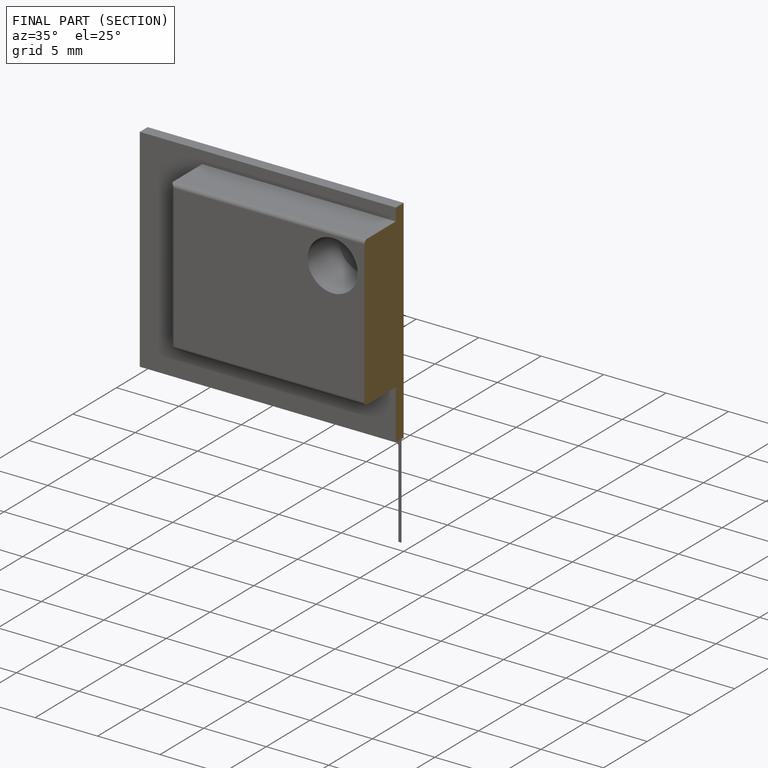
[diagram: finished part — half-section view (interior)]
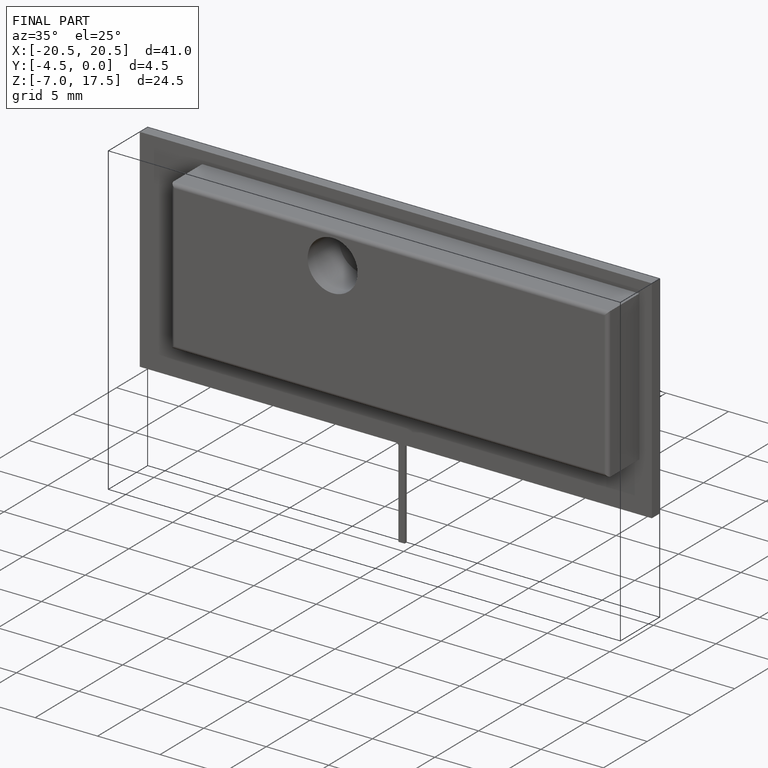
[diagram: finished part — iso view with bounding-box wireframe]
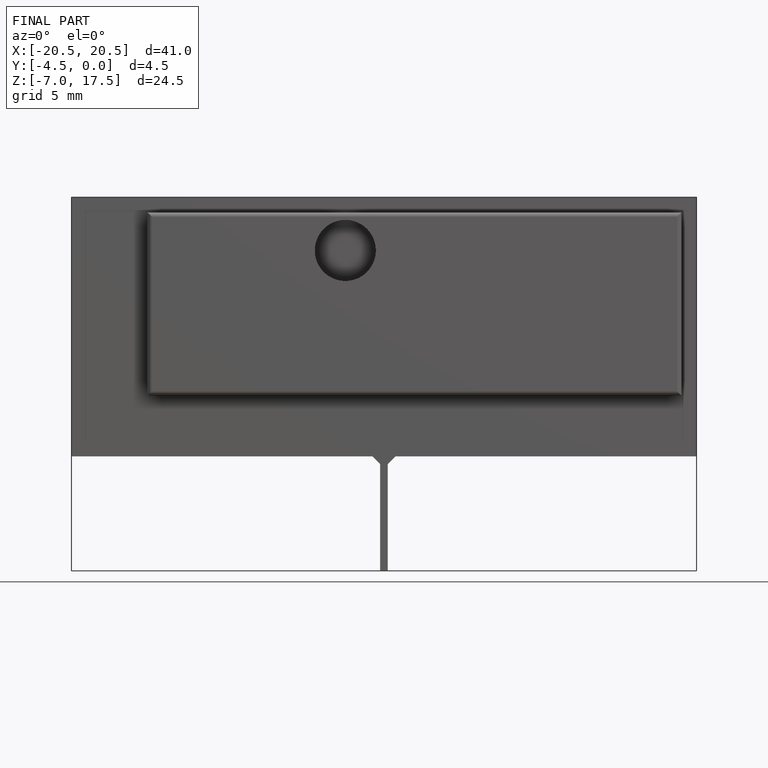
[diagram: finished part — front view with bounding-box wireframe]
